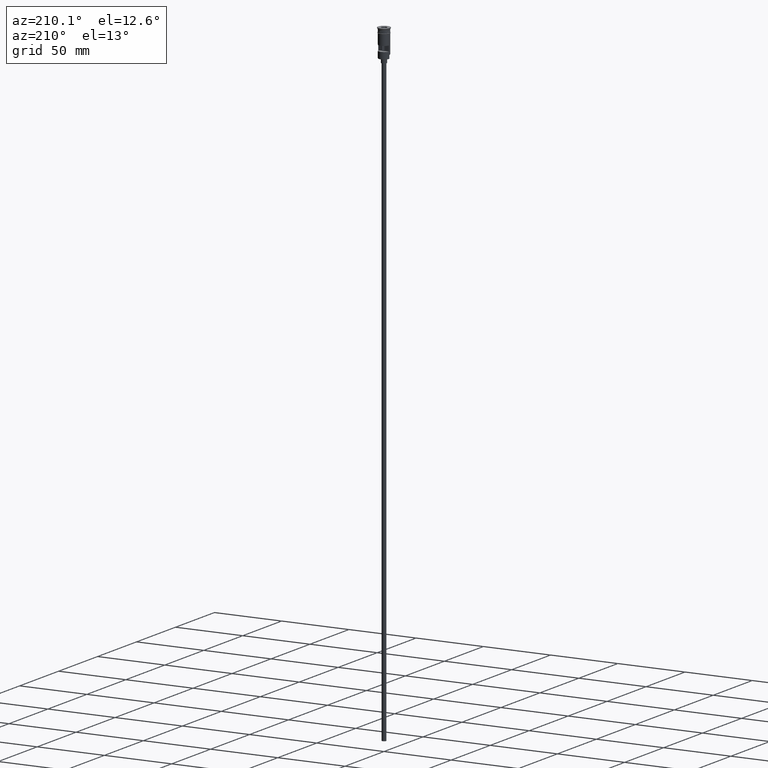
[diagram: clean part render]
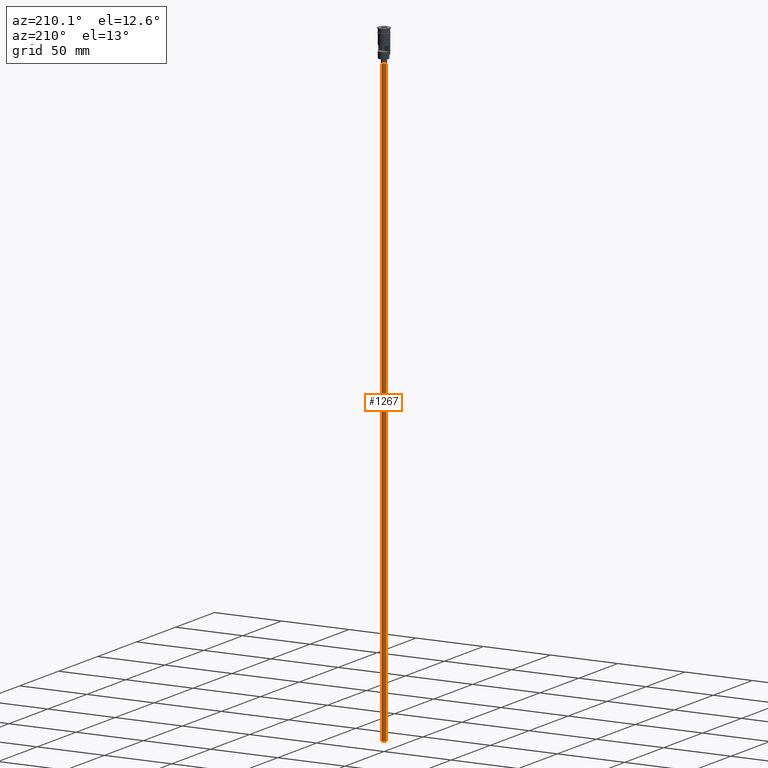
[diagram: same view with one face highlighted and labeled with its STEP entity id]
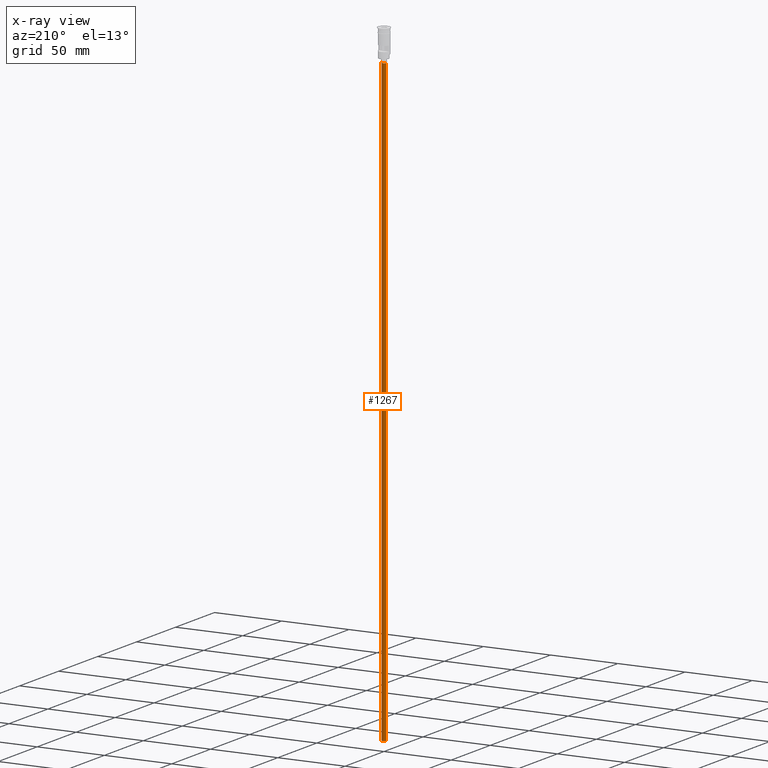
[diagram: x-ray of the same camera — body ghosted, the highlighted face saturated]
A machine part, auxiliary view. The second image highlights one B-rep face of the part: STEP entity #1267.
The next image is the same camera in x-ray: the body ghosted, the highlighted face saturated — about 0% of this face is hidden behind the body in this view.
In plain terms, the highlighted cylindrical surface (edge-blend (fillet) strip) has radius 1.5 mm, axis along (-0, -0, 1).
Its self-contained STEP definition (entity closure, byte-faithful):
#3 = EDGE_LOOP ( 'NONE', ( #1060, #1376, #446, #1554 ) ) ;
#8 = CARTESIAN_POINT ( 'NONE',  ( 1.500000000000000222, 0.000000000000000000, -470.5000000000000568 ) ) ;
#76 = CARTESIAN_POINT ( 'NONE',  ( 0.000000000000000000, 0.000000000000000000, -23.49999999999999645 ) ) ;
#93 = CIRCLE ( 'NONE', #1127, 1.500000000000000222 ) ;
#100 = CARTESIAN_POINT ( 'NONE',  ( 0.000000000000000000, 0.000000000000000000, -470.5000000000000568 ) ) ;
#118 = VERTEX_POINT ( 'NONE', #1473 ) ;
#243 = EDGE_CURVE ( 'NONE', #118, #673, #93, .T. ) ;
#291 = CARTESIAN_POINT ( 'NONE',  ( 0.000000000000000000, 0.000000000000000000, -470.5000000000000568 ) ) ;
#308 = CYLINDRICAL_SURFACE ( 'NONE', #1104, 1.500000000000000222 ) ;
#446 = ORIENTED_EDGE ( 'NONE', *, *, #243, .T. ) ;
#537 = CARTESIAN_POINT ( 'NONE',  ( -1.500000000000000222, 1.836970198721030181E-16, -470.5000000000000568 ) ) ;
#543 = CARTESIAN_POINT ( 'NONE',  ( 1.500000000000000222, 0.000000000000000000, -470.5000000000000568 ) ) ;
#556 = FACE_OUTER_BOUND ( 'NONE', #3, .T. ) ;
#597 = EDGE_CURVE ( 'NONE', #1097, #673, #1115, .T. ) ;
#673 = VERTEX_POINT ( 'NONE', #1404 ) ;
#674 = EDGE_CURVE ( 'NONE', #1256, #118, #1260, .T. ) ;
#693 = DIRECTION ( 'NONE',  ( 1.000000000000000000, 0.000000000000000000, 0.000000000000000000 ) ) ;
#801 = DIRECTION ( 'NONE',  ( -0.000000000000000000, -0.000000000000000000, 1.000000000000000000 ) ) ;
#873 = VECTOR ( 'NONE', #801, 1000.000000000000000 ) ;
#1015 = DIRECTION ( 'NONE',  ( 0.000000000000000000, 0.000000000000000000, -1.000000000000000000 ) ) ;
#1060 = ORIENTED_EDGE ( 'NONE', *, *, #1537, .F. ) ;
#1095 = DIRECTION ( 'NONE',  ( -1.000000000000000000, 0.000000000000000000, 0.000000000000000000 ) ) ;
#1097 = VERTEX_POINT ( 'NONE', #543 ) ;
#1104 = AXIS2_PLACEMENT_3D ( 'NONE', #100, #1551, #693 ) ;
#1115 = LINE ( 'NONE', #8, #873 ) ;
#1127 = AXIS2_PLACEMENT_3D ( 'NONE', #76, #1587, #1095 ) ;
#1130 = VECTOR ( 'NONE', #1519, 1000.000000000000000 ) ;
#1256 = VERTEX_POINT ( 'NONE', #1306 ) ;
#1260 = LINE ( 'NONE', #537, #1130 ) ;
#1267 = ADVANCED_FACE ( 'NONE', ( #556 ), #308, .T. ) ;
#1306 = CARTESIAN_POINT ( 'NONE',  ( -1.500000000000000222, 1.836970198721030181E-16, -470.5000000000000568 ) ) ;
#1362 = AXIS2_PLACEMENT_3D ( 'NONE', #291, #1015, #1526 ) ;
#1376 = ORIENTED_EDGE ( 'NONE', *, *, #674, .T. ) ;
#1404 = CARTESIAN_POINT ( 'NONE',  ( 1.500000000000000222, 0.000000000000000000, -23.49999999999999645 ) ) ;
#1421 = CIRCLE ( 'NONE', #1362, 1.500000000000000222 ) ;
#1473 = CARTESIAN_POINT ( 'NONE',  ( -1.500000000000000222, 1.836970198721030181E-16, -23.49999999999999645 ) ) ;
#1519 = DIRECTION ( 'NONE',  ( -0.000000000000000000, -0.000000000000000000, 1.000000000000000000 ) ) ;
#1526 = DIRECTION ( 'NONE',  ( -1.000000000000000000, 0.000000000000000000, 0.000000000000000000 ) ) ;
#1537 = EDGE_CURVE ( 'NONE', #1256, #1097, #1421, .T. ) ;
#1551 = DIRECTION ( 'NONE',  ( -0.000000000000000000, -0.000000000000000000, 1.000000000000000000 ) ) ;
#1554 = ORIENTED_EDGE ( 'NONE', *, *, #597, .F. ) ;
#1587 = DIRECTION ( 'NONE',  ( 0.000000000000000000, 0.000000000000000000, -1.000000000000000000 ) ) ;